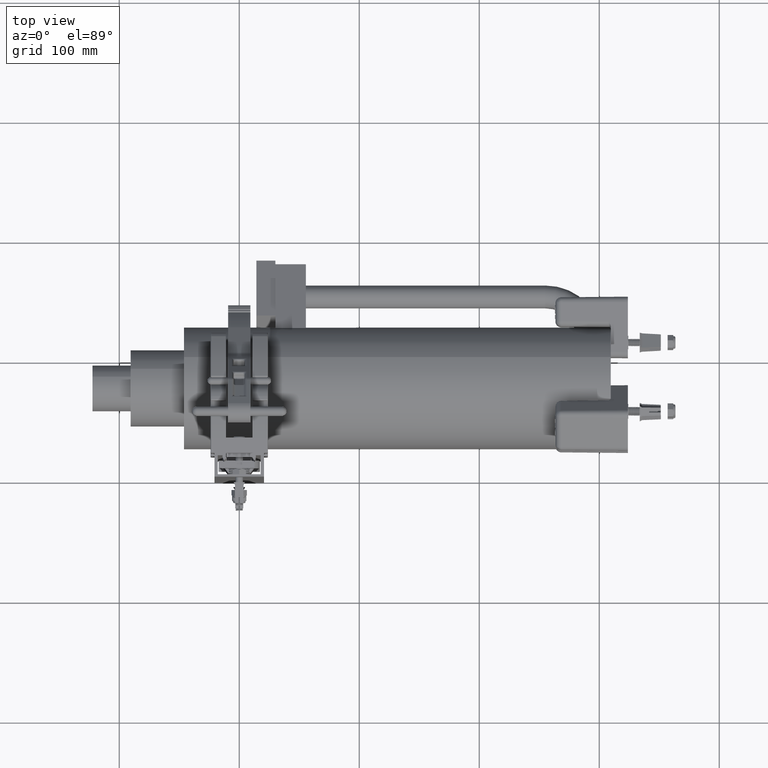
[diagram: clean part render]
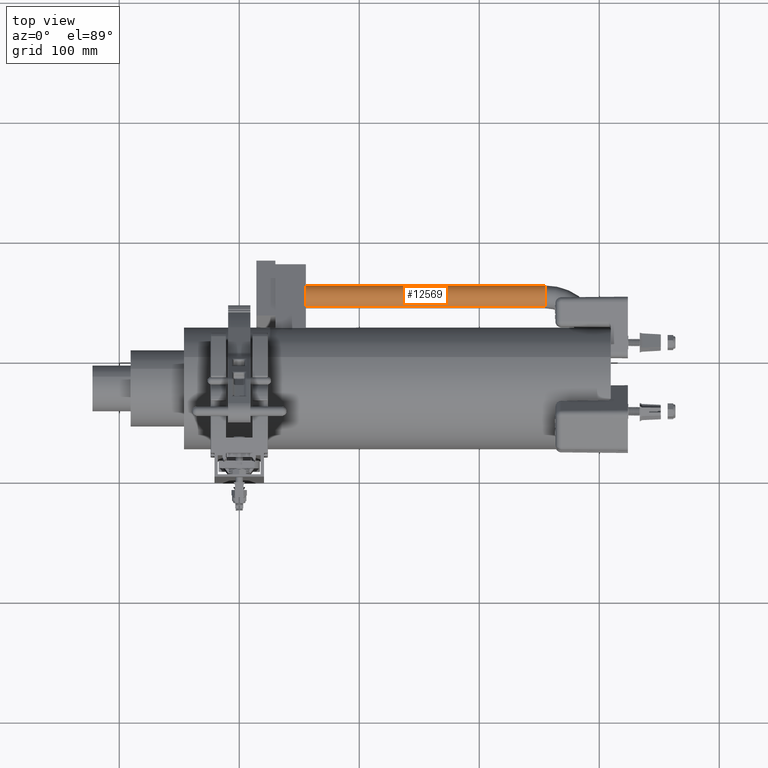
[diagram: same view with one face highlighted and labeled with its STEP entity id]
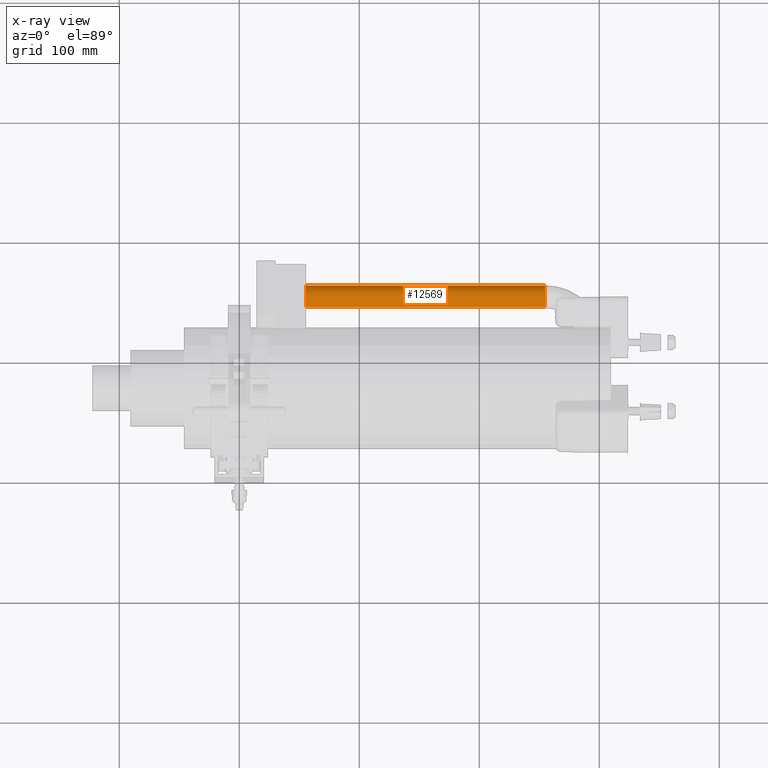
[diagram: x-ray of the same camera — body ghosted, the highlighted face saturated]
A machine part, top view. The second image highlights one B-rep face of the part: STEP entity #12569.
The next image is the same camera in x-ray: the body ghosted, the highlighted face saturated — about 0% of this face is hidden behind the body in this view.
In plain terms, the highlighted cylindrical surface (edge-blend (fillet) strip) has radius 9.525 mm, axis along (-1, -0, 0).
Its self-contained STEP definition (entity closure, byte-faithful):
#2073 = DIRECTION ( 'NONE',  ( -6.960122276851628500E-017, 1.000000000000000000, -6.162975822039154700E-033 ) ) ;
#2229 = CARTESIAN_POINT ( 'NONE',  ( 3.500000000000004000, 2.149999999999999900, 1.092739197465705300E-015 ) ) ;
#2376 = AXIS2_PLACEMENT_3D ( 'NONE', #2229, #31356, #6442 ) ;
#3697 = VERTEX_POINT ( 'NONE', #25993 ) ;
#5571 = DIRECTION ( 'NONE',  ( -6.960122276851628500E-017, 1.000000000000000000, -6.162975822039154700E-033 ) ) ;
#6442 = DIRECTION ( 'NONE',  ( 0.0000000000000000000, 0.0000000000000000000, -1.000000000000000000 ) ) ;
#8186 = EDGE_LOOP ( 'NONE', ( #40869, #52915, #21930, #31335 ) ) ;
#9218 = CARTESIAN_POINT ( 'NONE',  ( 3.125000000000004000, 2.149999999999999900, 1.092739197465705300E-015 ) ) ;
#10696 = VERTEX_POINT ( 'NONE', #9218 ) ;
#10765 = EDGE_CURVE ( 'NONE', #42763, #3697, #41359, .T. ) ;
#12569 = ADVANCED_FACE ( 'NONE', ( #21661 ), #19039, .T. ) ;
#17849 = CARTESIAN_POINT ( 'NONE',  ( 3.500000000000002200, 10.00000000000000200, 2.731847993664263200E-016 ) ) ;
#19039 = CYLINDRICAL_SURFACE ( 'NONE', #19267, 0.3750000000000007800 ) ;
#19267 = AXIS2_PLACEMENT_3D ( 'NONE', #31213, #2073, #39804 ) ;
#21661 = FACE_OUTER_BOUND ( 'NONE', #8186, .T. ) ;
#21930 = ORIENTED_EDGE ( 'NONE', *, *, #48948, .T. ) ;
#22053 = DIRECTION ( 'NONE',  ( 0.0000000000000000000, 0.0000000000000000000, -1.000000000000000000 ) ) ;
#24808 = LINE ( 'NONE', #52570, #45695 ) ;
#25993 = CARTESIAN_POINT ( 'NONE',  ( 3.875000000000002200, 10.00000000000000200, 1.138663452433727400E-015 ) ) ;
#27591 = DIRECTION ( 'NONE',  ( -6.960122276851628500E-017, 1.000000000000000000, -6.162975822039154700E-033 ) ) ;
#30492 = CARTESIAN_POINT ( 'NONE',  ( 3.875000000000004900, 2.149999999999999900, 1.138663452433731200E-015 ) ) ;
#31213 = CARTESIAN_POINT ( 'NONE',  ( 3.500000000000004000, 2.149999999999999900, 1.092739197465705300E-015 ) ) ;
#31335 = ORIENTED_EDGE ( 'NONE', *, *, #33701, .F. ) ;
#31356 = DIRECTION ( 'NONE',  ( -1.598521853841405800E-032, -1.000000000000000000, -3.659266894335748100E-033 ) ) ;
#31556 = VECTOR ( 'NONE', #5571, 39.37007874015748100 ) ;
#33701 = EDGE_CURVE ( 'NONE', #10696, #53787, #24808, .T. ) ;
#34635 = CARTESIAN_POINT ( 'NONE',  ( 3.125000000000001800, 10.00000000000000200, 1.092739197465709200E-015 ) ) ;
#39804 = DIRECTION ( 'NONE',  ( -1.000000000000000000, 0.0000000000000000000, 0.0000000000000000000 ) ) ;
#40869 = ORIENTED_EDGE ( 'NONE', *, *, #48535, .F. ) ;
#41359 = LINE ( 'NONE', #30492, #31556 ) ;
#42763 = VERTEX_POINT ( 'NONE', #51757 ) ;
#43238 = AXIS2_PLACEMENT_3D ( 'NONE', #17849, #47027, #22053 ) ;
#45373 = CIRCLE ( 'NONE', #43238, 0.3750000000000006700 ) ;
#45695 = VECTOR ( 'NONE', #27591, 39.37007874015748100 ) ;
#47027 = DIRECTION ( 'NONE',  ( -1.598521853841405800E-032, -1.000000000000000000, -3.659266894335748100E-033 ) ) ;
#48535 = EDGE_CURVE ( 'NONE', #42763, #10696, #49989, .T. ) ;
#48948 = EDGE_CURVE ( 'NONE', #3697, #53787, #45373, .T. ) ;
#49989 = CIRCLE ( 'NONE', #2376, 0.3750000000000006700 ) ;
#51757 = CARTESIAN_POINT ( 'NONE',  ( 3.875000000000004400, 2.149999999999999900, 1.138663452433731200E-015 ) ) ;
#52570 = CARTESIAN_POINT ( 'NONE',  ( 3.125000000000003600, 2.149999999999999900, 1.092739197465705300E-015 ) ) ;
#52915 = ORIENTED_EDGE ( 'NONE', *, *, #10765, .T. ) ;
#53787 = VERTEX_POINT ( 'NONE', #34635 ) ;